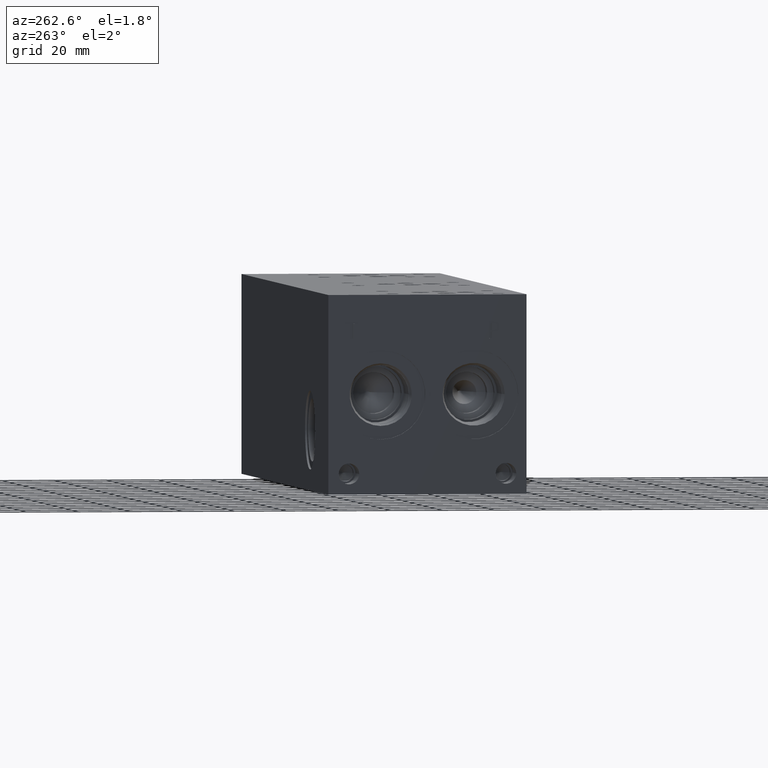
[diagram: clean part render]
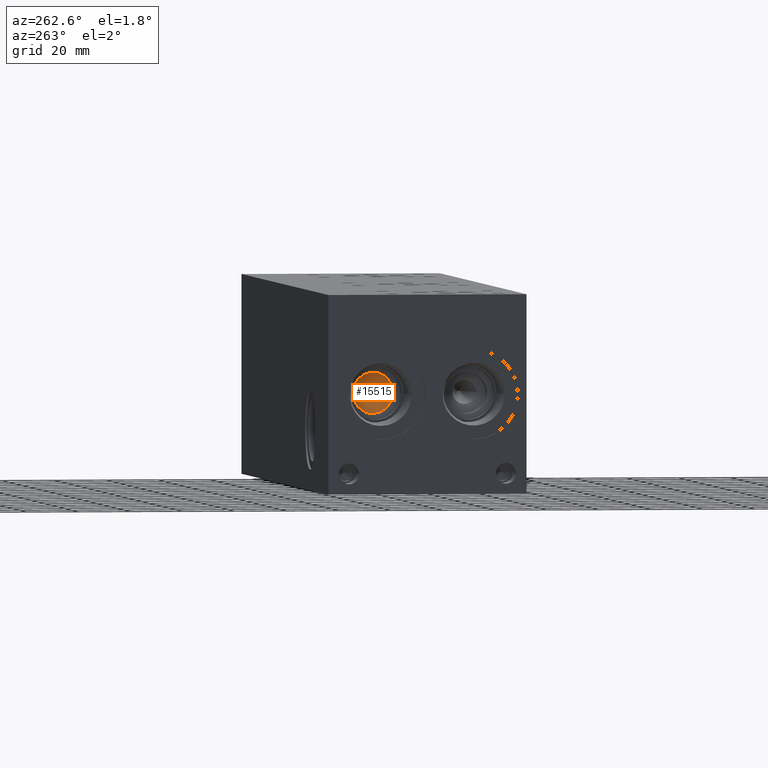
[diagram: same view with one face highlighted and labeled with its STEP entity id]
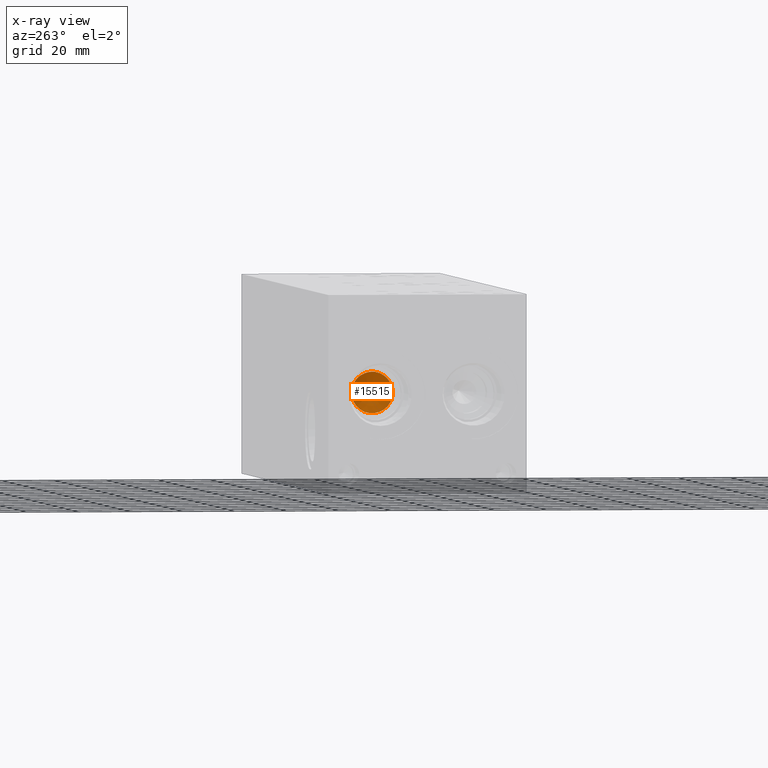
[diagram: x-ray of the same camera — body ghosted, the highlighted face saturated]
A machine part, auxiliary view. The second image highlights one B-rep face of the part: STEP entity #15515.
The next image is the same camera in x-ray: the body ghosted, the highlighted face saturated — about 0% of this face is hidden behind the body in this view.
In plain terms, the highlighted conical surface has half-angle 60 deg.
Its self-contained STEP definition (entity closure, byte-faithful):
#98=CONICAL_SURFACE('',#16566,3.96875,1.0471975511966);
#640=CIRCLE('',#16567,7.9375);
#641=CIRCLE('',#16568,7.9375);
#2166=FACE_OUTER_BOUND('',#3080,.T.);
#3080=EDGE_LOOP('',(#13638,#13639,#13640,#13641));
#4452=LINE('',#26993,#5787);
#5787=VECTOR('',#19971,3.96875);
#7273=VERTEX_POINT('',#26989);
#7274=VERTEX_POINT('',#26990);
#7275=VERTEX_POINT('',#26992);
#9426=EDGE_CURVE('',#7273,#7274,#640,.T.);
#9427=EDGE_CURVE('',#7274,#7275,#4452,.T.);
#9428=EDGE_CURVE('',#7274,#7273,#641,.T.);
#13638=ORIENTED_EDGE('',*,*,#9426,.T.);
#13639=ORIENTED_EDGE('',*,*,#9427,.T.);
#13640=ORIENTED_EDGE('',*,*,#9427,.F.);
#13641=ORIENTED_EDGE('',*,*,#9428,.T.);
#15515=ADVANCED_FACE('',(#2166),#98,.F.);
#16566=AXIS2_PLACEMENT_3D('',#26988,#19967,#19968);
#16567=AXIS2_PLACEMENT_3D('',#26991,#19969,#19970);
#16568=AXIS2_PLACEMENT_3D('',#26994,#19972,#19973);
#19967=DIRECTION('center_axis',(-1.,0.,0.));
#19968=DIRECTION('ref_axis',(0.,1.,0.));
#19969=DIRECTION('center_axis',(-1.,0.,0.));
#19970=DIRECTION('ref_axis',(0.,1.,0.));
#19971=DIRECTION('',(0.5,0.866025403784439,-1.06057523872491E-16));
#19972=DIRECTION('center_axis',(-1.,0.,0.));
#19973=DIRECTION('ref_axis',(0.,1.,0.));
#26988=CARTESIAN_POINT('Origin',(28.6690688808463,55.9562,38.1));
#26989=CARTESIAN_POINT('',(26.37771,63.8937,38.1));
#26990=CARTESIAN_POINT('',(26.37771,48.0187,38.1));
#26991=CARTESIAN_POINT('Origin',(26.37771,55.9562,38.1));
#26992=CARTESIAN_POINT('',(30.9604277616927,55.9562,38.1));
#26993=CARTESIAN_POINT('',(28.6690688808463,51.98745,38.1));
#26994=CARTESIAN_POINT('Origin',(26.37771,55.9562,38.1));